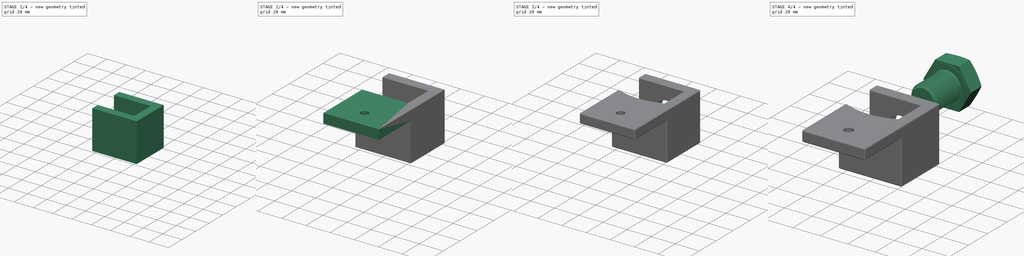
[diagram: build sequence overview — one tinted view per stage of 4, left to right]
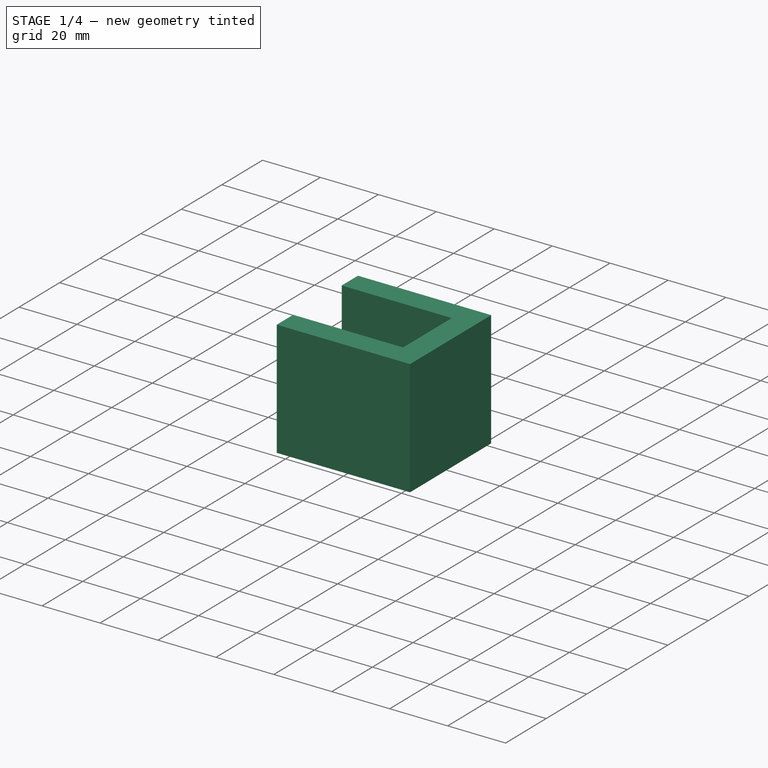
[diagram: stage 1 of 4 — iso view after this stage's code; geometry added in this stage tinted green]
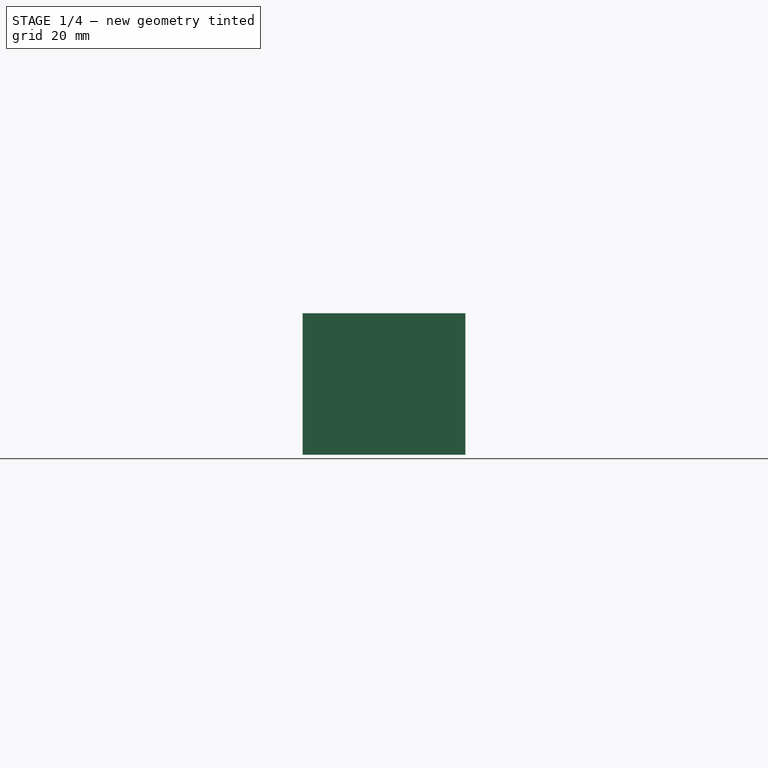
[diagram: stage 1 of 4 — front view after this stage's code; geometry added in this stage tinted green]
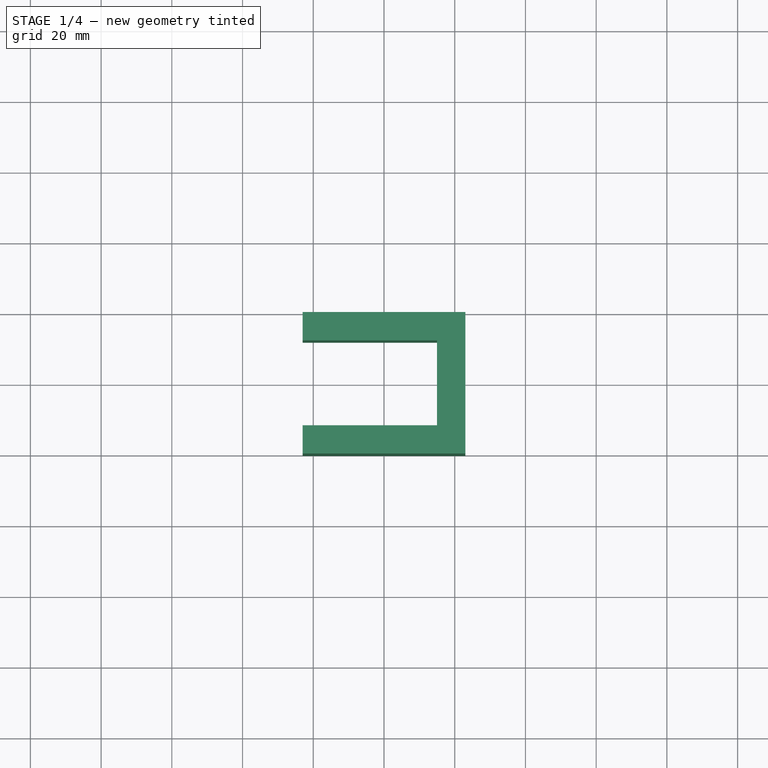
[diagram: stage 1 of 4 — top view after this stage's code; geometry added in this stage tinted green]
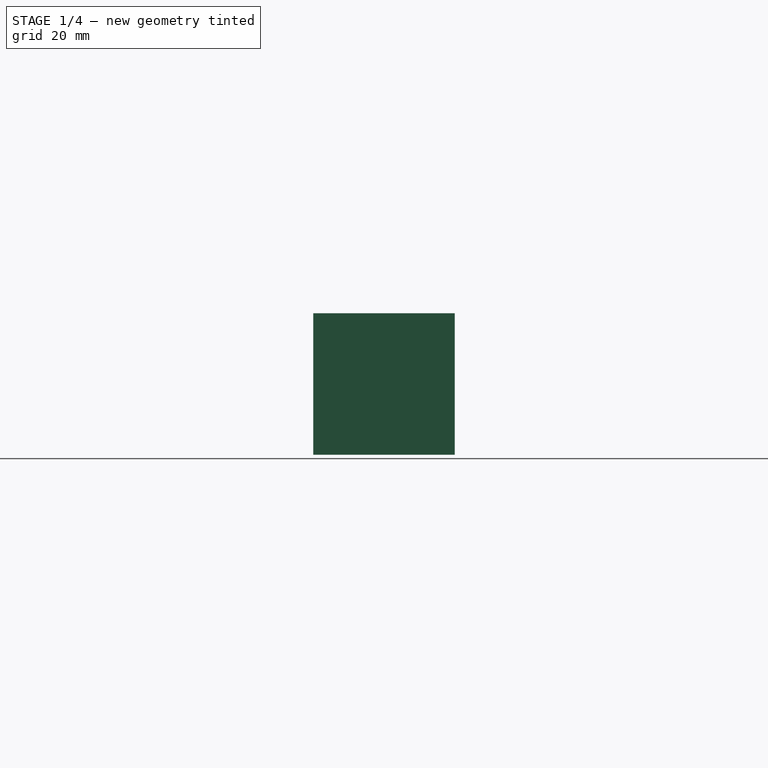
[diagram: stage 1 of 4 — right view after this stage's code; geometry added in this stage tinted green]
FCSTD DOCUMENT  (FreeCAD 1.0R39109 (Git))
Label: WebCamClamp (1)
License: All rights reserved
LicenseURL: https://en.wikipedia.org/wiki/All_rights_reserved
objects: Sketcher::SketchObject×6, PartDesign::Pad×2, PartDesign::Pocket×2, PartDesign::Hole×2, PartDesign::Fillet×2, App::VarSet×1, PartDesign::Chamfer×1, Part::FeaturePython×1, PartDesign::Body×1
note: 41 computed .brp shape members not serialized (recipe doc carries the construction recipe); baked Part::Feature solids carry a one-line shape summary decoded from their .brp

FEATURE [Sketcher::SketchObject] Sketch
  ArcFitTolerance = 1e-06
  AttachmentSupport = -> [XY_Plane]
  FullyConstrained = true
  MakeInternals = false
  MapMode = 5
  expr: Constraints[10] = <<Dimensions>>.InternalWidth + <<Dimensions>>.Thickness * 2
  expr: Constraints[11] = <<Dimensions>>.InternalLength + <<Dimensions>>.Thickness
  sketch-geometry (5):
    g0: LineSegment StartX=-23 StartY=-20 StartZ=0 EndX=23 EndY=-20 EndZ=0
    g1: LineSegment StartX=23 StartY=-20 StartZ=0 EndX=23 EndY=20 EndZ=0
    g2: LineSegment StartX=23 StartY=20 StartZ=0 EndX=-23 EndY=20 EndZ=0
    g3: LineSegment StartX=-23 StartY=20 StartZ=0 EndX=-23 EndY=-20 EndZ=0
    g4: GeomPoint [constr] X=0 Y=0 Z=0
  constraints (12):
    c: Coincident(g0,g1)
    c: Coincident(g1,g2)
    c: Coincident(g2,g3)
    c: Coincident(g3,g0)
    c: Horizontal(g0)
    c: Horizontal(g2)
    c: Vertical(g1)
    c: Vertical(g3)
    c: Symmetric(g2,g0,g4)
    c: Coincident(g4,g-1)
    c: DistanceY(g0,g2) = 40
    c: DistanceX(g2,g1) = 46
FEATURE [App::VarSet] VarSet  label="Dimensions"
  ClampHeight = 40
  InternalLength = 38
  InternalWidth = 24
  ShelfLength = 46
  Thickness = 8
FEATURE [PartDesign::Pad] Pad  label="Main-Body-Pad"
  Direction = (0,0,1)
  Length = 40
  Length2 = 10
  Profile = -> Sketch
  ReferenceAxis = -> Sketch [N_Axis]
  Refine = true
  Suppressed = false
  Type = 0
  expr: Length = <<Dimensions>>.ClampHeight
FEATURE [Sketcher::SketchObject] Sketch001  label="Inner-Pocket-Sketch"
  ArcFitTolerance = 1e-06
  AttachmentSupport = -> [Pad]
  ExternalGeometry = -> [Pad]
  FullyConstrained = true
  MakeInternals = false
  MapMode = 5
  Placement = pos=(0,0,40) rot=(0,0,1;0rad)
  expr: Constraints[7] = <<Dimensions>>.Thickness
  expr: Constraints[8] = <<Dimensions>>.Thickness
  expr: Constraints[9] = <<Dimensions>>.InternalLength
  sketch-geometry (4):
    g0: LineSegment StartX=-23 StartY=12 StartZ=0 EndX=-23 EndY=-12 EndZ=0
    g1: LineSegment StartX=-23 StartY=-12 StartZ=0 EndX=15 EndY=-12 EndZ=0
    g2: LineSegment StartX=15 StartY=-12 StartZ=0 EndX=15 EndY=12 EndZ=0
    g3: LineSegment StartX=15 StartY=12 StartZ=0 EndX=-23 EndY=12 EndZ=0
  constraints (11):
    c: Coincident(g0,g1)
    c: Coincident(g1,g2)
    c: Coincident(g2,g3)
    c: Coincident(g3,g0)
    c: Vertical(g2)
    c: Horizontal(g1)
    c: Horizontal(g3)
    c: DistanceY(g0,g-3) = 8
    c: DistanceY(g-5,g0) = 8
    c: DistanceX(g0,g2) = 38
    c: Tangent(g0,g-6)
FEATURE [PartDesign::Pocket] Pocket  label="Inner-Pocket"
  BaseFeature = -> Pad
  Direction = (0,0,-1)
  Length = 5
  Length2 = 5
  Profile = -> Sketch001
  ReferenceAxis = -> Sketch001 [N_Axis]
  Refine = true
  Suppressed = false
  Type = 1
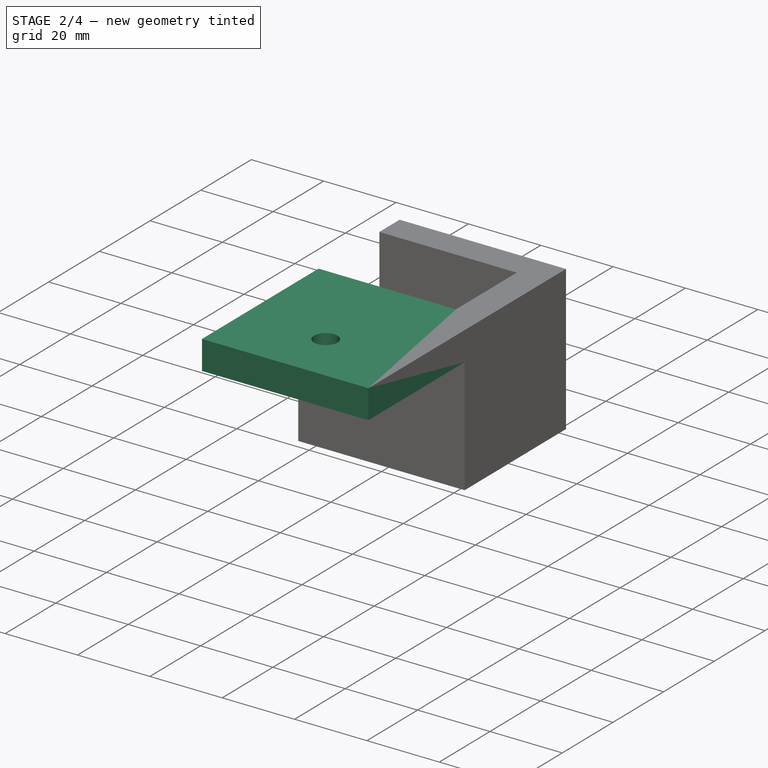
[diagram: stage 2 of 4 — iso view after this stage's code; geometry added in this stage tinted green]
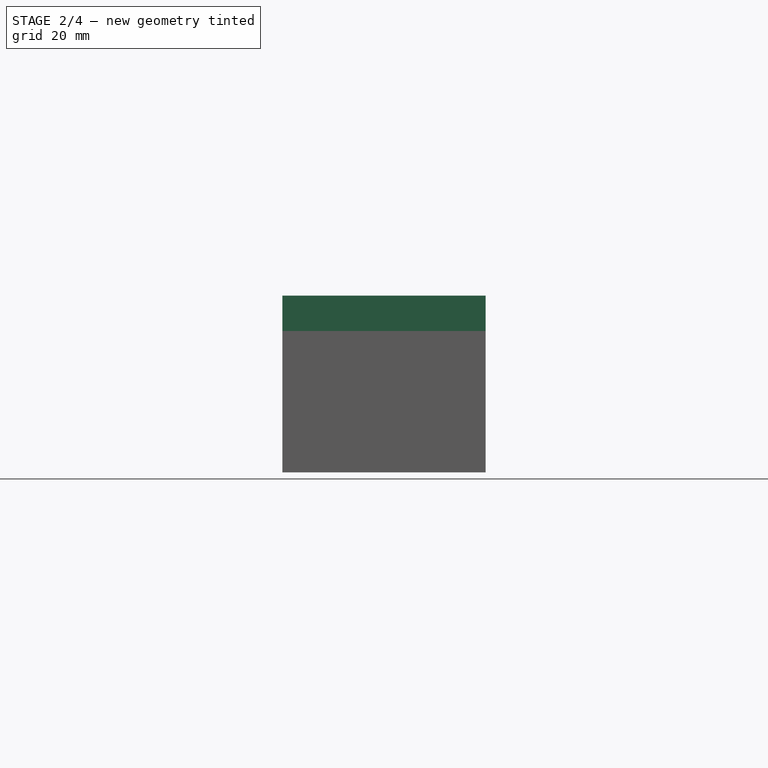
[diagram: stage 2 of 4 — front view after this stage's code; geometry added in this stage tinted green]
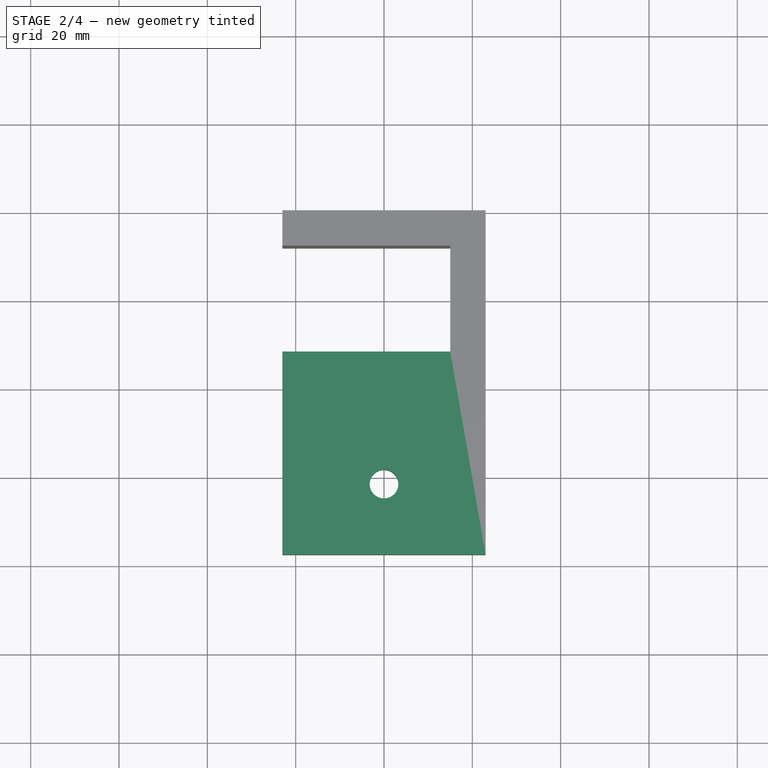
[diagram: stage 2 of 4 — top view after this stage's code; geometry added in this stage tinted green]
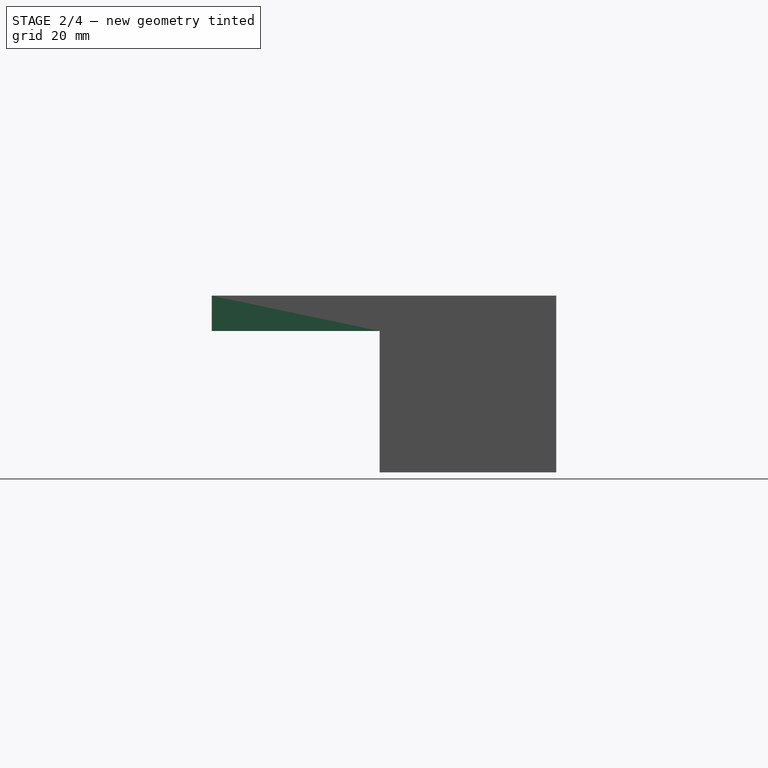
[diagram: stage 2 of 4 — right view after this stage's code; geometry added in this stage tinted green]
FEATURE [Sketcher::SketchObject] Sketch002  label="Shelf-Sketch"
  ArcFitTolerance = 1e-06
  AttachmentSupport = -> [Pocket]
  ExternalGeometry = -> [Pocket]
  FullyConstrained = true
  MakeInternals = false
  MapMode = 5
  Placement = pos=(0,-20,0) rot=(1,0,0;1.5708rad)
  expr: Constraints[8] = <<Dimensions>>.InternalLength + <<Dimensions>>.Thickness
  expr: Constraints[9] = <<Dimensions>>.Thickness
  sketch-geometry (4):
    g0: LineSegment StartX=-23 StartY=40 StartZ=0 EndX=-23 EndY=32 EndZ=0
    g1: LineSegment StartX=-23 StartY=32 StartZ=0 EndX=23 EndY=32 EndZ=0
    g2: LineSegment StartX=23 StartY=32 StartZ=0 EndX=23 EndY=40 EndZ=0
    g3: LineSegment StartX=23 StartY=40 StartZ=0 EndX=-23 EndY=40 EndZ=0
  constraints (11):
    c: Coincident(g0,g1)
    c: Coincident(g1,g2)
    c: Coincident(g2,g3)
    c: Coincident(g3,g0)
    c: Vertical(g0)
    c: Vertical(g2)
    c: Horizontal(g1)
    c: Horizontal(g3)
    c: DistanceX(g3,g3) = 46
    c: DistanceY(g0,g0) = 8
    c: Coincident(g0,g-4)
FEATURE [PartDesign::Pad] Pad001  label="Shelf-Pad"
  BaseFeature = -> Pocket
  Direction = (0,-1,2e-16)
  Length = 38
  Length2 = 10
  Profile = -> Sketch002
  ReferenceAxis = -> Sketch002 [N_Axis]
  Refine = true
  Suppressed = false
  Type = 0
  expr: Length = <<Dimensions>>.ShelfLength - <<Dimensions>>.Thickness
FEATURE [Sketcher::SketchObject] Sketch004  label="Shelf-Hole-Sketch"
  ArcFitTolerance = 1e-06
  FullyConstrained = true
  MakeInternals = false
  MapMode = 5
  Placement = pos=(0,0,40) rot=(0,0,1;0rad)
  expr: Constraints[2] = 16 mm
  sketch-geometry (2):
    g0: Circle CenterX=0 CenterY=-42 CenterZ=0 NormalX=0 NormalY=0 NormalZ=1 AngleXU=0 Radius=3.25
    g1: GeomPoint X=0 Y=-58 Z=0
  constraints (4):
    c: PointOnObject(g0,g-2)
    c: Symmetric(g-3,g-3,g1)
    c: DistanceY(g1,g0) = 16
    c: Diameter(g0) = 6.5
FEATURE [PartDesign::Hole] Hole001  label="Shelf-Hole"
  BaseFeature = -> Pad001
  CustomThreadClearance = 0
  Depth = 25
  DepthType = 0
  Diameter = 6.5
  DrillForDepth = false
  DrillPoint = 1
  DrillPointAngle = 118
  HoleCutCountersinkAngle = 90
  HoleCutCustomValues = false
  HoleCutDepth = 0
  HoleCutDiameter = 13.6
  HoleCutType = 0
  ModelThread = false
  Profile = -> Sketch004
  Refine = true
  Suppressed = false
  Tapered = false
  TaperedAngle = 111
  ThreadClass = 0
  ThreadDepth = 25
  ThreadDepthType = 0
  ThreadDirection = 0
  ThreadFit = 0
  ThreadSize = 0
  ThreadType = 0
  Threaded = false
  UseCustomThreadClearance = false
FEATURE [PartDesign::Chamfer] Chamfer
  Angle = 45
  Base = -> Hole001 [Edge18]
  BaseFeature = -> Hole001
  ChamferType = 0
  FlipDirection = false
  Refine = true
  Size = 0.5
  Size2 = 1
  SupportTransform = false
  Suppressed = false
  UseAllEdges = false
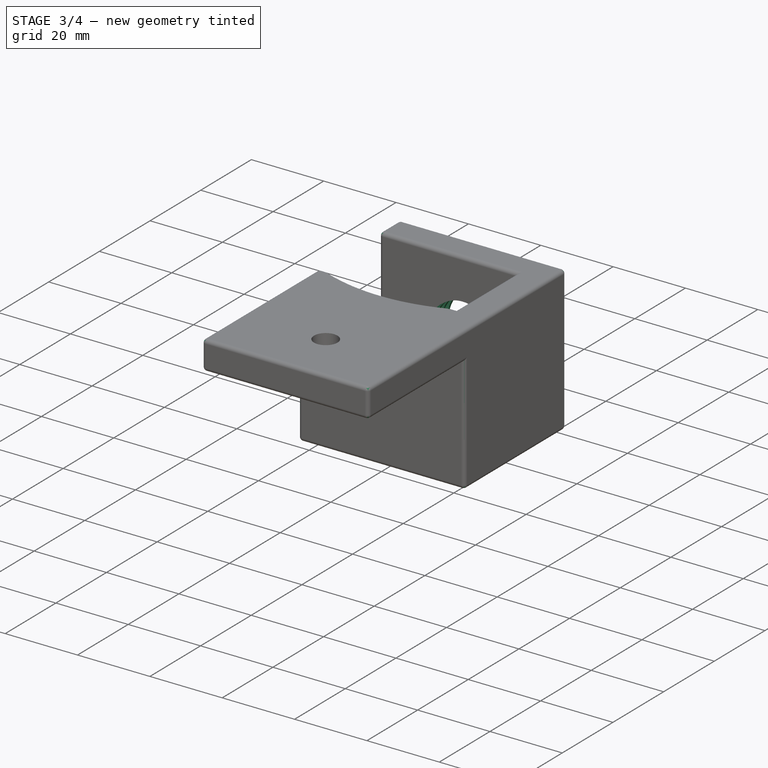
[diagram: stage 3 of 4 — iso view after this stage's code; geometry added in this stage tinted green]
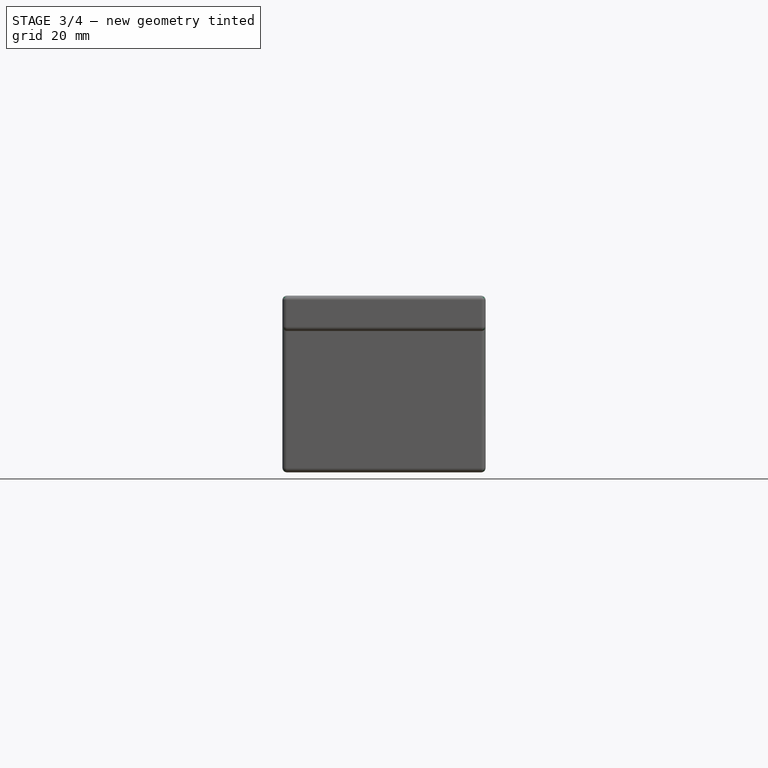
[diagram: stage 3 of 4 — front view after this stage's code; geometry added in this stage tinted green]
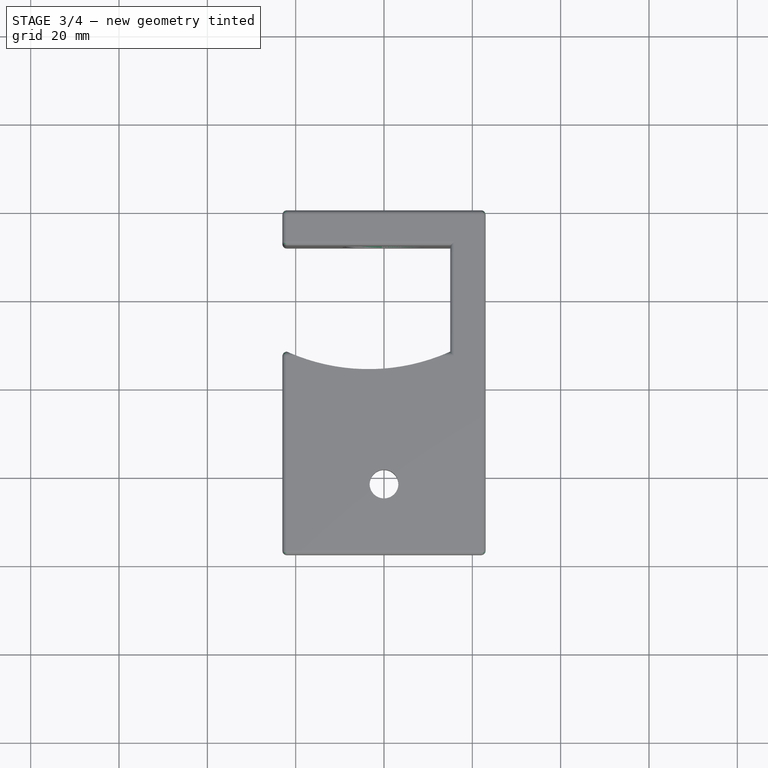
[diagram: stage 3 of 4 — top view after this stage's code; geometry added in this stage tinted green]
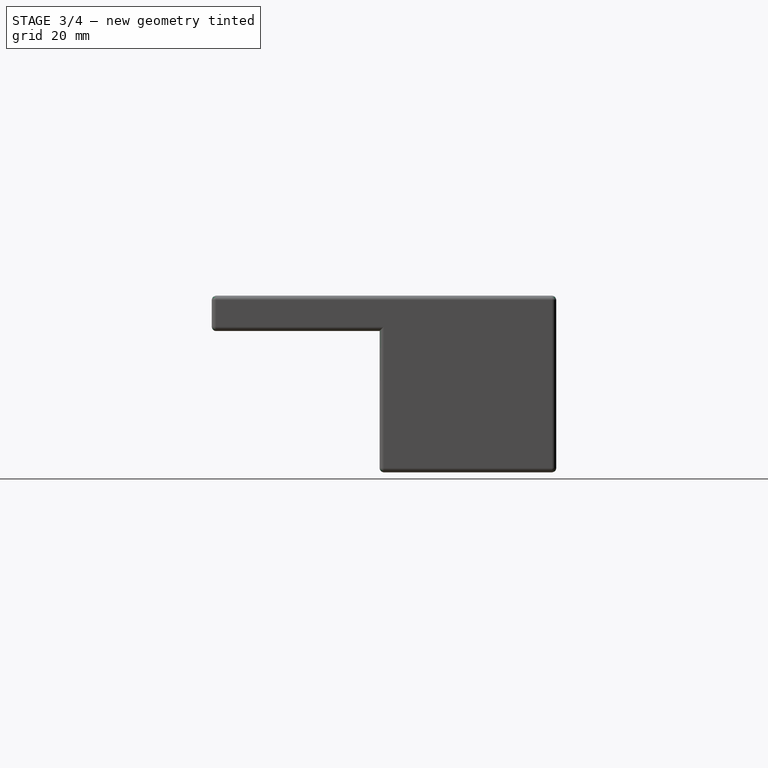
[diagram: stage 3 of 4 — right view after this stage's code; geometry added in this stage tinted green]
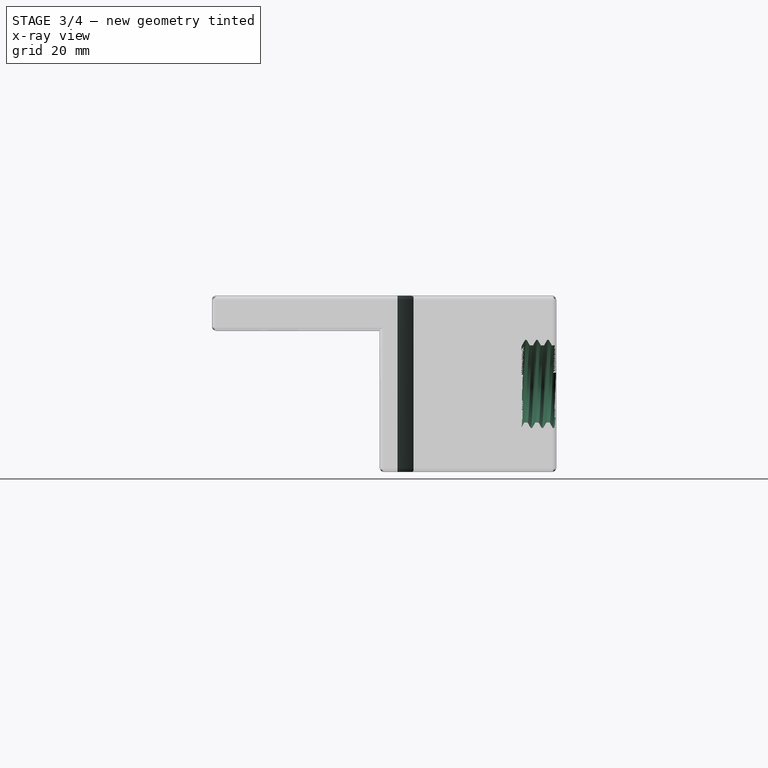
[diagram: stage 3 of 4 — x-ray composite at the right view; earlier geometry ghosted, this stage's added geometry solid]
FEATURE [Sketcher::SketchObject] Sketch003  label="Back-Hole-Sketch"
  ArcFitTolerance = 1e-06
  AttachmentSupport = -> [Pad001]
  FullyConstrained = true
  MakeInternals = false
  MapMode = 5
  Placement = pos=(0,20,0) rot=(0,0.707107,0.707107;3.14159rad)
  expr: Constraints[1] = <<Dimensions>>.ClampHeight / 2
  sketch-geometry (1):
    g0: Circle CenterX=0 CenterY=20 CenterZ=0 NormalX=0 NormalY=0 NormalZ=1 AngleXU=0 Radius=7.5
  constraints (3):
    c: PointOnObject(g0,g-2)
    c: DistanceY(g-1,g0) = 20
    c: Diameter(g0) = 15
FEATURE [PartDesign::Hole] Hole  label="Back-Hole"
  BaseFeature = -> Chamfer
  CustomThreadClearance = 0
  Depth = 10
  DepthType = 0
  Diameter = 17.5
  DrillForDepth = false
  DrillPoint = 1
  DrillPointAngle = 118
  HoleCutCountersinkAngle = 90
  HoleCutCustomValues = false
  HoleCutDepth = 0
  HoleCutDiameter = 41
  HoleCutType = 0
  ModelThread = true
  Profile = -> Sketch003
  Refine = true
  Suppressed = false
  Tapered = false
  TaperedAngle = 90
  ThreadClass = 1
  ThreadDepth = 10
  ThreadDepthType = 0
  ThreadDirection = 0
  ThreadFit = 0
  ThreadSize = 24
  ThreadType = 1
  Threaded = true
  UseCustomThreadClearance = false
  expr: Depth = <<Dimensions>>.Thickness + 2 mm
FEATURE [PartDesign::Fillet] Fillet
  Base = -> Hole [Edge33,Edge40,Edge31,Edge25,Edge12,Edge2,Edge11,Edge9,Edge8,Edge22,Edge13,Edge26,Edge24,Edge23,Edge17,Edge5,Edge4,Edge14,Edge18,Edge19,Edge28,Edge29,Edge27,Edge30,Edge16,Edge15,Edge10]
  BaseFeature = -> Hole
  Radius = 1
  Refine = true
  SupportTransform = false
  Suppressed = false
  UseAllEdges = false
FEATURE [Sketcher::SketchObject] Sketch005
  ArcFitTolerance = 1e-06
  AttachmentSupport = -> [Fillet]
  ExternalGeometry = -> [Fillet]
  FullyConstrained = true
  MakeInternals = false
  MapMode = 5
  Placement = pos=(0,0,40) rot=(0,0,1;0rad)
  sketch-geometry (2):
    g0: ArcOfCircle CenterX=-3.5 CenterY=29.0213 CenterZ=0 NormalX=0 NormalY=0 NormalZ=1 AngleXU=0 Radius=45 StartAngle=4.28872 EndAngle=5.13606
    g1: LineSegment StartX=-22 StartY=-12 StartZ=0 EndX=15 EndY=-12 EndZ=0
  constraints (5):
    c: Coincident(g0,g-3)
    c: Coincident(g0,g-3)
    c: Diameter(g0) = 90
    c: Coincident(g1,g0)
    c: Coincident(g1,g0)
FEATURE [PartDesign::Pocket] Pocket001
  BaseFeature = -> Fillet
  Direction = (0,0,-1)
  Length = 5
  Length2 = 5
  Profile = -> Sketch005
  ReferenceAxis = -> Sketch005 [N_Axis]
  Refine = true
  Suppressed = false
  Type = 1
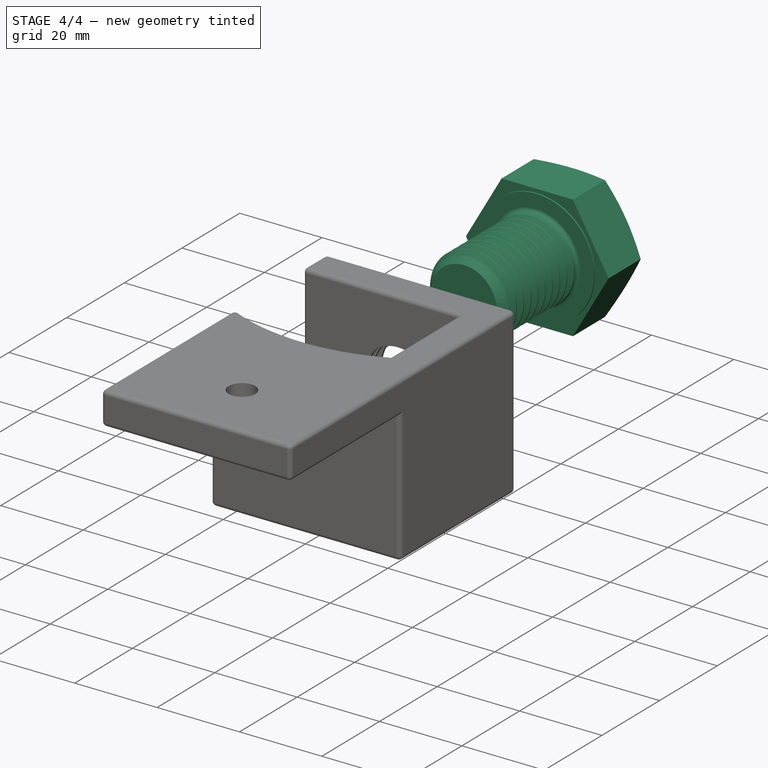
[diagram: stage 4 of 4 — iso view after this stage's code; geometry added in this stage tinted green]
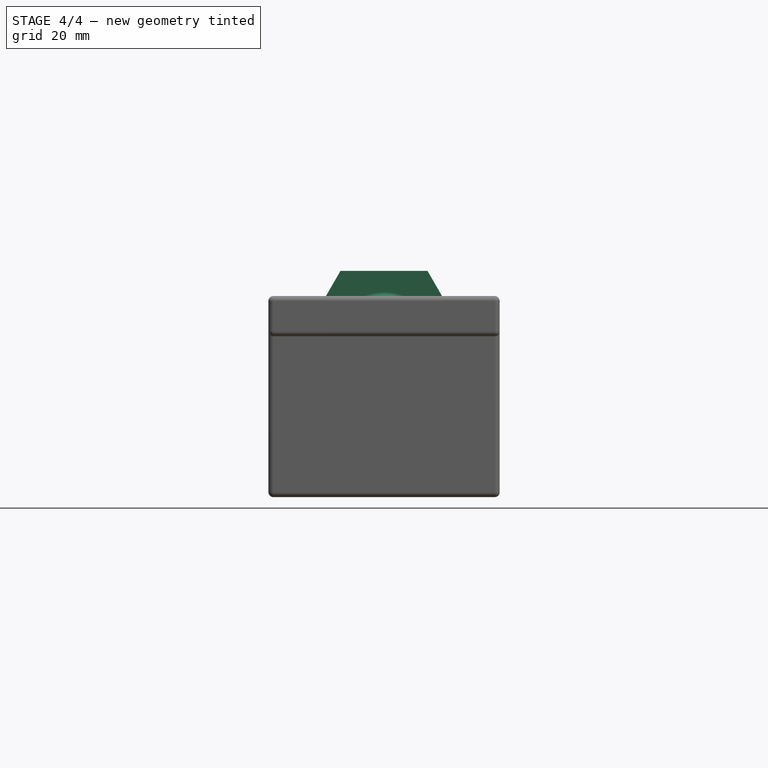
[diagram: stage 4 of 4 — front view after this stage's code; geometry added in this stage tinted green]
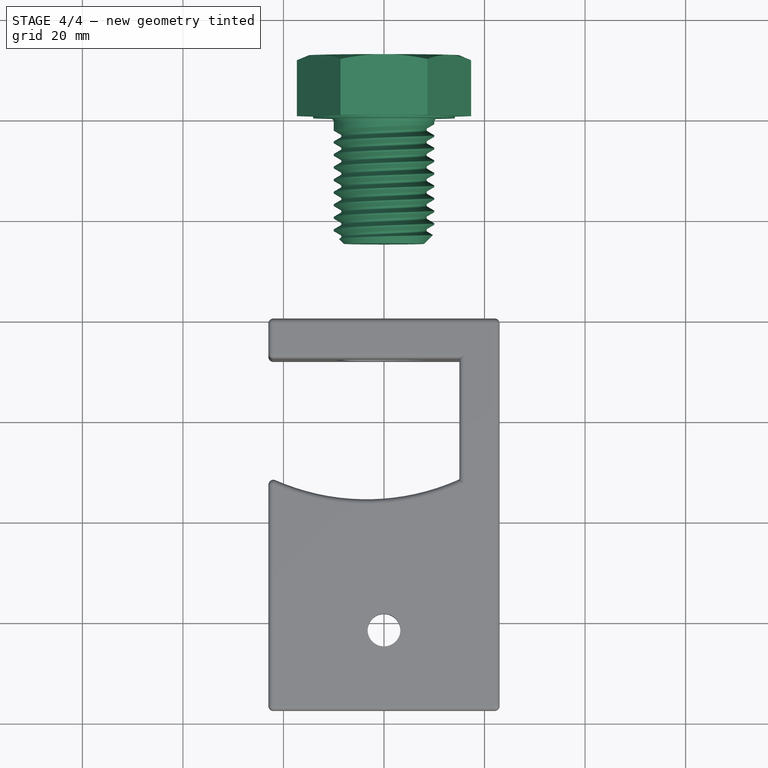
[diagram: stage 4 of 4 — top view after this stage's code; geometry added in this stage tinted green]
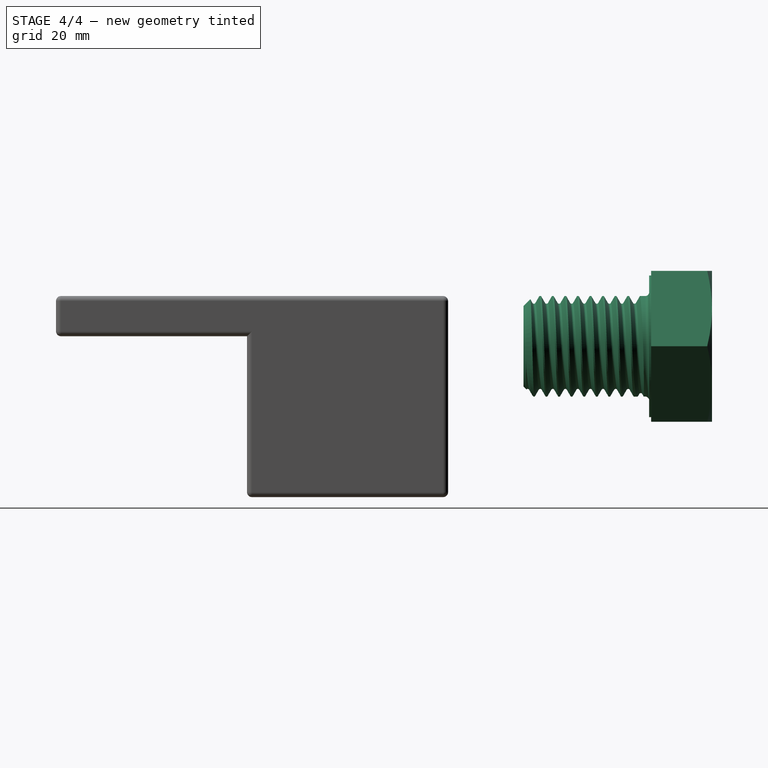
[diagram: stage 4 of 4 — right view after this stage's code; geometry added in this stage tinted green]
FEATURE [Part::FeaturePython] Screw  label="M20x25-Screw"  # WARN: FeaturePython — macro-defined, semantics opaque (R4)
  Diameter = 15
  Invert = false
  LeftHanded = false
  Length = 18
  LengthCustom = 25
  MatchOuter = false
  OffsetAngle = 0
  Placement = pos=(0,60,30) rot=(1,0,0;4.71239rad)
  Thread = true
  Type = 65
  expr: LengthCustom = 25 mm
FEATURE [PartDesign::Fillet] Fillet001
  Base = -> Pocket001 [Edge78]
  BaseFeature = -> Pocket001
  Radius = 1
  Refine = true
  SupportTransform = false
  Suppressed = false
  UseAllEdges = false
FEATURE [PartDesign::Body] Body  label="Clamp"
  AllowCompound = false
  Group = -> [Sketch,Pad,Sketch001,Pocket,Sketch002,Pad001,Sketch003,Sketch004,Hole001,Chamfer,Hole,Fillet,Sketch005,Pocket001,Fillet001]
  Origin = -> Origin
  Tip = -> Fillet001
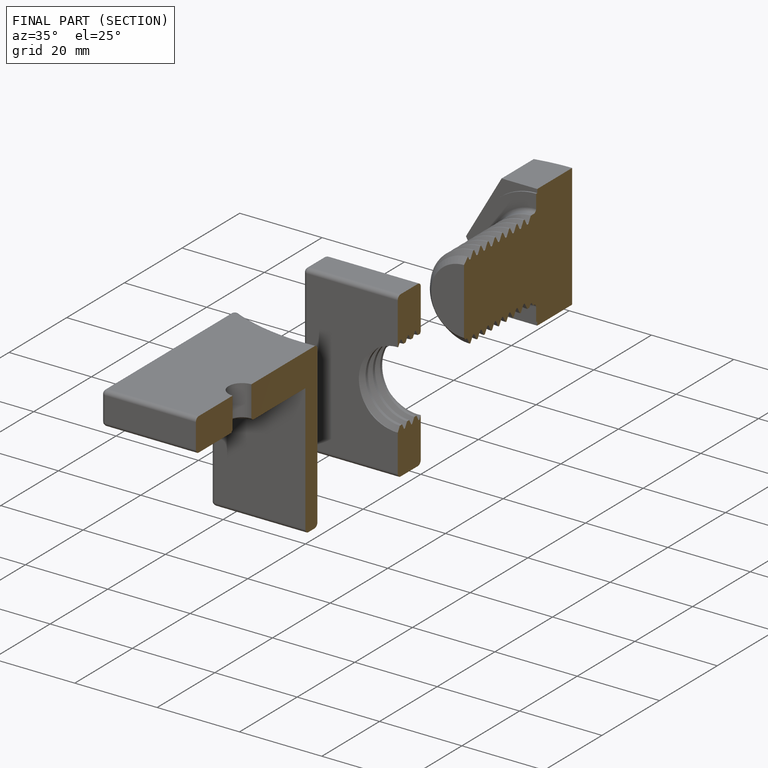
[diagram: finished part — half-section view (interior)]
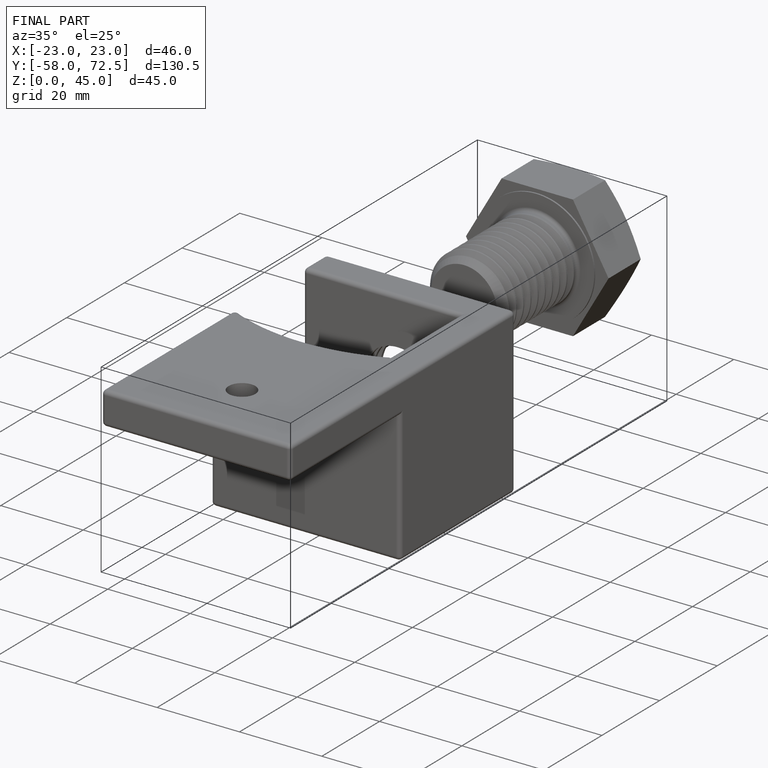
[diagram: finished part — iso view with bounding-box wireframe]
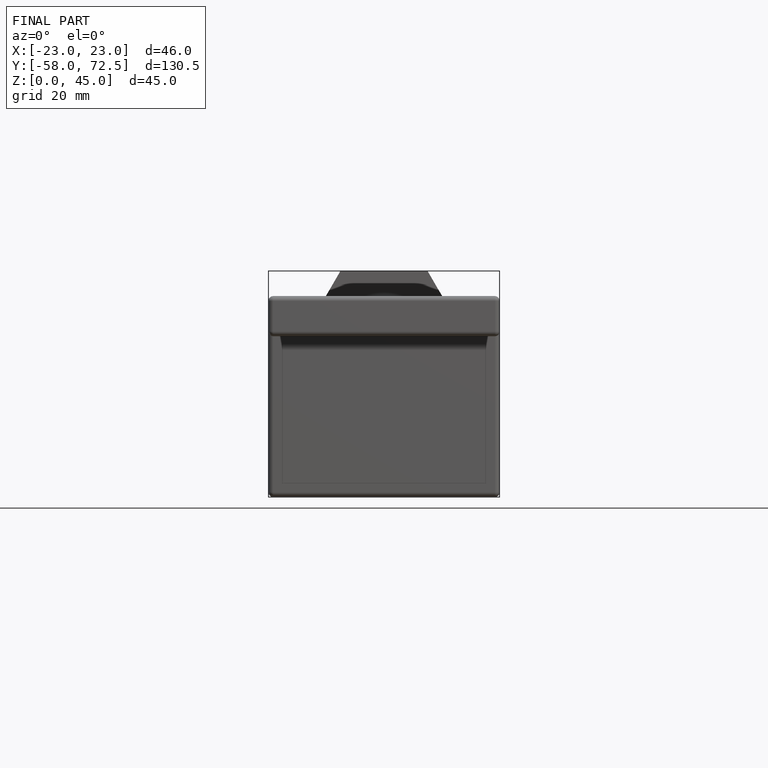
[diagram: finished part — front view with bounding-box wireframe]
